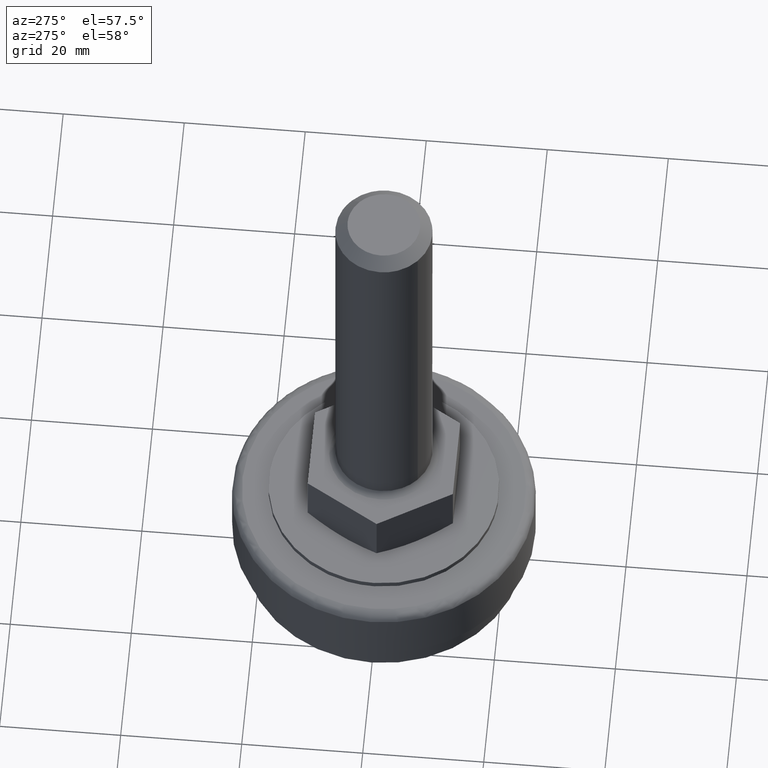
[diagram: clean part render]
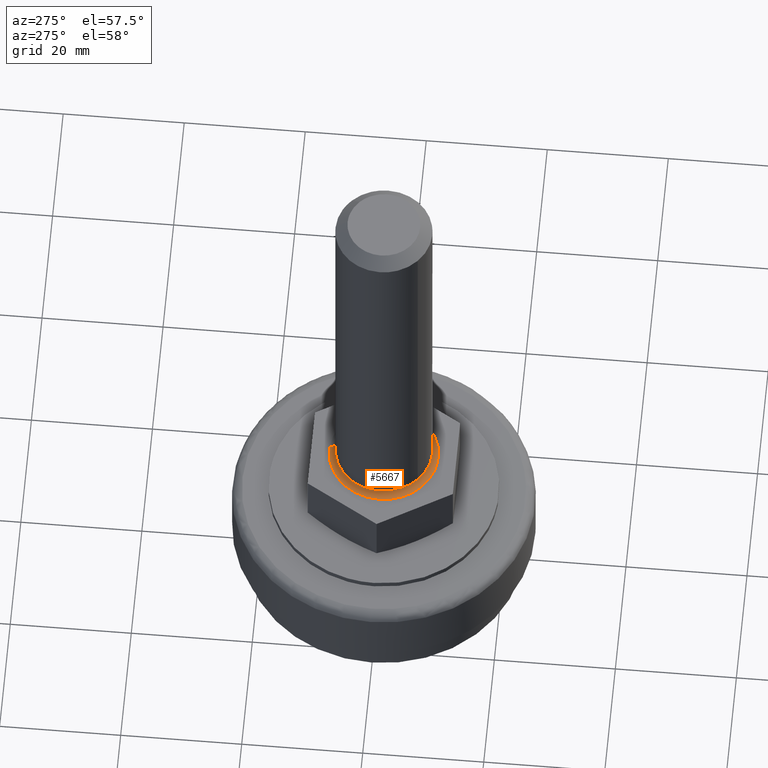
[diagram: same view with one face highlighted and labeled with its STEP entity id]
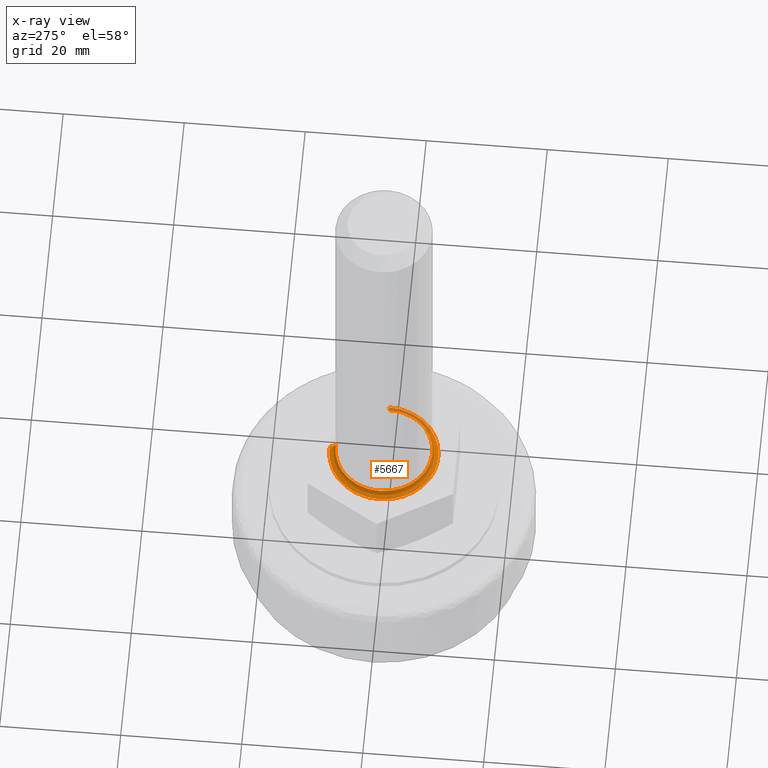
[diagram: x-ray of the same camera — body ghosted, the highlighted face saturated]
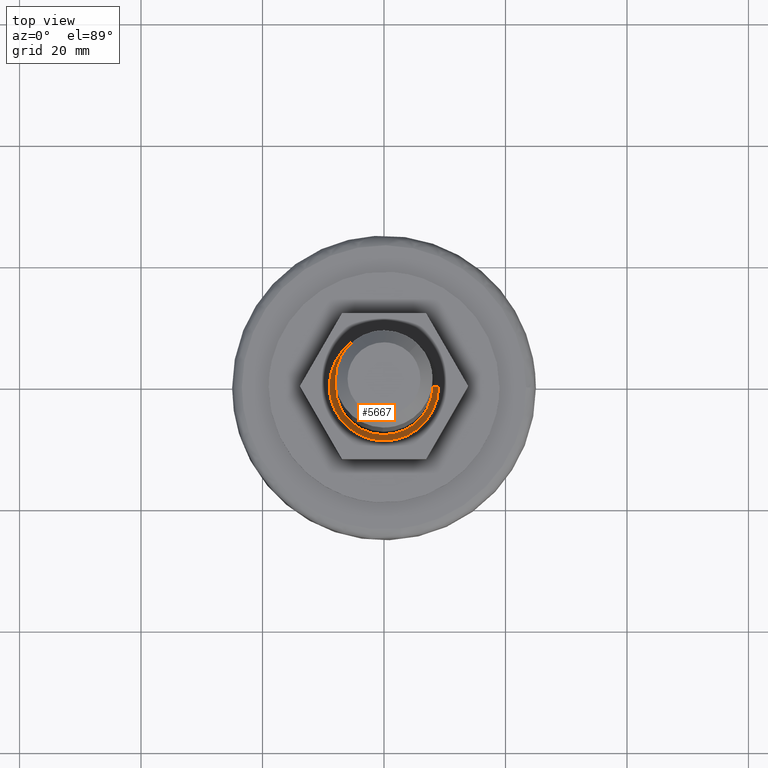
[diagram: same view with one face highlighted and labeled with its STEP entity id]
A machine part, auxiliary view. The second image highlights one B-rep face of the part: STEP entity #5667.
The next image is the same camera in x-ray: the body ghosted, the highlighted face saturated — about 10% of this face is hidden behind the body in this view.
A second angle (top view) of the same face is appended — the face is thin or edge-on in the first view.
In plain terms, the highlighted face is a freeform B-spline surface patch.
Its self-contained STEP definition (entity closure, byte-faithful):
#5288=CARTESIAN_POINT('',(-8.0,0.0,28.500000000000000));
#5289=VERTEX_POINT('',#5288);
#5290=CARTESIAN_POINT('',(-5.228297372842688,-6.055155372170212,28.500000000000011));
#5291=VERTEX_POINT('',#5290);
#5292=CARTESIAN_POINT('',(-8.0,0.0,28.500000000000000));
#5293=CARTESIAN_POINT('',(-8.0,-3.661940884154239,28.500000000000004));
#5294=CARTESIAN_POINT('',(-5.228297372842688,-6.055155372170212,28.500000000000011));
#5302=(BOUNDED_CURVE()B_SPLINE_CURVE(2,(#5292,#5293,#5294),.UNSPECIFIED.,.F.,.U.)B_SPLINE_CURVE_WITH_KNOTS((3,3),(0.500000000000000,0.636042381466519),.UNSPECIFIED.)CURVE()GEOMETRIC_REPRESENTATION_ITEM()RATIONAL_B_SPLINE_CURVE((1.0,0.840616435988895,0.854696228895326))REPRESENTATION_ITEM(''));
#5303=EDGE_CURVE('',#5289,#5291,#5302,.T.);
#5315=CARTESIAN_POINT('',(-0.209415586498194,-7.997258599803535,28.500000000000000));
#5316=VERTEX_POINT('',#5315);
#5322=CARTESIAN_POINT('',(7.999368353630505,-0.100528319068580,28.499999998374079));
#5323=VERTEX_POINT('',#5322);
#5324=CARTESIAN_POINT('',(-0.209415586498194,-7.997258599803535,28.500000000000004));
#5325=CARTESIAN_POINT('',(-0.104725736713907,-8.000000000000002,28.500000000000004));
#5326=CARTESIAN_POINT('',(0.0,-8.0,28.500000000000000));
#5327=CARTESIAN_POINT('',(7.900095439255026,-8.0,28.500000000000007));
#5328=CARTESIAN_POINT('',(7.999368353630505,-0.100528319068580,28.499999998374086));
#5336=(BOUNDED_CURVE()B_SPLINE_CURVE(2,(#5324,#5325,#5326,#5327,#5328),.UNSPECIFIED.,.F.,.U.)B_SPLINE_CURVE_WITH_KNOTS((3,2,3),(0.745396693339456,0.750000000000000,0.997784295921651),.UNSPECIFIED.)CURVE()GEOMETRIC_REPRESENTATION_ITEM()RATIONAL_B_SPLINE_CURVE((0.989412390644809,0.994606890780031,1.0,0.709702639984331,0.994854295643834))REPRESENTATION_ITEM(''));
#5337=EDGE_CURVE('',#5316,#5323,#5336,.T.);
#5354=CARTESIAN_POINT('',(0.557866012694641,7.980525390717089,28.499999998402100));
#5355=VERTEX_POINT('',#5354);
#5369=CARTESIAN_POINT('',(0.557866012694641,7.980525390717089,28.499999998402100));
#5370=CARTESIAN_POINT('',(0.279272927089130,8.0,28.499999999999996));
#5371=CARTESIAN_POINT('',(0.0,8.0,28.500000000000000));
#5372=CARTESIAN_POINT('',(-8.0,8.0,28.500000000000007));
#5373=CARTESIAN_POINT('',(-8.0,0.0,28.500000000000000));
#5381=(BOUNDED_CURVE()B_SPLINE_CURVE(2,(#5369,#5370,#5371,#5372,#5373),.UNSPECIFIED.,.F.,.U.)B_SPLINE_CURVE_WITH_KNOTS((3,2,3),(0.237833686531208,0.250000000000000,0.500000000000000),.UNSPECIFIED.)CURVE()GEOMETRIC_REPRESENTATION_ITEM()RATIONAL_B_SPLINE_CURVE((0.972879876378762,0.985746277148128,1.0,0.707106781186548,1.0))REPRESENTATION_ITEM(''));
#5382=EDGE_CURVE('',#5355,#5289,#5381,.T.);
#5405=CARTESIAN_POINT('',(-5.228297372842687,-6.055155372170212,28.500000000000018));
#5406=CARTESIAN_POINT('',(-3.065671857307104,-7.922464897089474,28.500000000000004));
#5407=CARTESIAN_POINT('',(-0.209415586498194,-7.997258599803535,28.499999999999996));
#5415=(BOUNDED_CURVE()B_SPLINE_CURVE(2,(#5405,#5406,#5407),.UNSPECIFIED.,.F.,.U.)B_SPLINE_CURVE_WITH_KNOTS((3,3),(0.636042381466519,0.745396693339456),.UNSPECIFIED.)CURVE()GEOMETRIC_REPRESENTATION_ITEM()RATIONAL_B_SPLINE_CURVE((0.854696228895326,0.866013923043273,0.989412390644810))REPRESENTATION_ITEM(''));
#5416=EDGE_CURVE('',#5291,#5316,#5415,.T.);
#5564=CARTESIAN_POINT('',(0.558034370785871,7.982940164000940,28.569537117542900));
#5565=CARTESIAN_POINT('',(0.329566273462526,7.998910852533643,28.569537117542893));
#5566=CARTESIAN_POINT('',(0.100558736863971,8.001788797602575,28.569537117542890));
#5567=CARTESIAN_POINT('',(-7.901230060738604,8.102347534466544,28.569537117542893));
#5568=CARTESIAN_POINT('',(-8.001788797602575,0.100558736863972,28.569537117542890));
#5569=CARTESIAN_POINT('',(-8.102347534466546,-7.901230060738604,28.569537117542893));
#5570=CARTESIAN_POINT('',(-0.100558736863972,-8.001788797602575,28.569537117542890));
#5571=CARTESIAN_POINT('',(7.901230060738602,-8.102347534466546,28.569537117542893));
#5572=CARTESIAN_POINT('',(8.001788797602575,-0.100558736863973,28.569537117542890));
#5573=CARTESIAN_POINT('',(0.552458657605693,7.903177004204340,27.422462619565575));
#5574=CARTESIAN_POINT('',(0.326273345444312,7.918988118375302,27.422462619565589));
#5575=CARTESIAN_POINT('',(0.099553983924247,7.921837307874517,27.422462619565572));
#5576=CARTESIAN_POINT('',(-7.822283323950267,8.021391291798761,27.422462619565579));
#5577=CARTESIAN_POINT('',(-7.921837307874517,0.099553983924247,27.422462619565572));
#5578=CARTESIAN_POINT('',(-8.021391291798761,-7.822283323950267,27.422462619565579));
#5579=CARTESIAN_POINT('',(-0.099553983924248,-7.921837307874517,27.422462619565572));
#5580=CARTESIAN_POINT('',(7.822283323950267,-8.021391291798764,27.422462619565579));
#5581=CARTESIAN_POINT('',(7.921837307874517,-0.099553983924248,27.422462619565572));
#5582=CARTESIAN_POINT('',(0.632447827896207,9.047459137396228,27.502420648819527));
#5583=CARTESIAN_POINT('',(0.373513684301718,9.065559505046146,27.502420648819530));
#5584=CARTESIAN_POINT('',(0.113968167616702,9.068821221891806,27.502420648819530));
#5585=CARTESIAN_POINT('',(-8.954853054275105,9.182789389508510,27.502420648819527));
#5586=CARTESIAN_POINT('',(-9.068821221891806,0.113968167616702,27.502420648819530));
#5587=CARTESIAN_POINT('',(-9.182789389508510,-8.954853054275105,27.502420648819527));
#5588=CARTESIAN_POINT('',(-0.113968167616703,-9.068821221891806,27.502420648819530));
#5589=CARTESIAN_POINT('',(8.954853054275105,-9.182789389508512,27.502420648819527));
#5590=CARTESIAN_POINT('',(9.068821221891806,-0.113968167616703,27.502420648819530));
#5598=(BOUNDED_SURFACE()B_SPLINE_SURFACE(2,2,((#5564,#5573,#5582),(#5565,#5574,#5583),(#5566,#5575,#5584),(#5567,#5576,#5585),(#5568,#5577,#5586),(#5569,#5578,#5587),(#5570,#5579,#5588),(#5571,#5580,#5589),(#5572,#5581,#5590)),.UNSPECIFIED.,.F.,.F.,.U.)B_SPLINE_SURFACE_WITH_KNOTS((3,2,2,2,3),(3,3),(0.0,0.601075484383022,15.627976924728539,30.654878365074062,45.681779805419573),(0.0,1.822374170355891),.UNSPECIFIED.)GEOMETRIC_REPRESENTATION_ITEM()RATIONAL_B_SPLINE_SURFACE(((0.889999303352454,0.584039722868744,0.889999383380160),(0.899812874413934,0.590479632766999,0.899812955324064),(0.910479798596171,0.597479534249830,0.910479880465459),(0.643806439720715,0.422481830288235,0.643806497611043),(0.910479798596171,0.597479534249830,0.910479880465459),(0.643806439720715,0.422481830288235,0.643806497611043),(0.910479798596171,0.597479534249830,0.910479880465459),(0.643806439720715,0.422481830288235,0.643806497611043),(0.910479798596171,0.597479534249830,0.910479880465459)))REPRESENTATION_ITEM('')SURFACE());
#5599=CARTESIAN_POINT('',(-9.0,0.0,27.500000000000000));
#5600=VERTEX_POINT('',#5599);
#5601=CARTESIAN_POINT('',(0.627599264215905,8.978091064476018,27.500000000000000));
#5602=VERTEX_POINT('',#5601);
#5603=CARTESIAN_POINT('',(-9.0,0.0,27.500000000000000));
#5604=CARTESIAN_POINT('',(-9.0,9.0,27.499999999999993));
#5605=CARTESIAN_POINT('',(0.0,9.0,27.500000000000000));
#5606=CARTESIAN_POINT('',(0.314182042915423,8.999999999999998,27.500000000000004));
#5607=CARTESIAN_POINT('',(0.627599264215905,8.978091064476018,27.499999999999996));
#5615=(BOUNDED_CURVE()B_SPLINE_CURVE(2,(#5603,#5604,#5605,#5606,#5607),.UNSPECIFIED.,.F.,.U.)B_SPLINE_CURVE_WITH_KNOTS((3,2,3),(0.500000000000000,0.750000000000000,0.762166313466508),.UNSPECIFIED.)CURVE()GEOMETRIC_REPRESENTATION_ITEM()RATIONAL_B_SPLINE_CURVE((1.0,0.707106781186547,1.0,0.985746277150805,0.972879876383594))REPRESENTATION_ITEM(''));
#5616=EDGE_CURVE('',#5600,#5602,#5615,.T.);
#5617=ORIENTED_EDGE('',*,*,#5616,.F.);
#5618=CARTESIAN_POINT('',(8.999289397697183,-0.113094358939853,27.500000000000000));
#5619=VERTEX_POINT('',#5618);
#5620=CARTESIAN_POINT('',(8.999289397697183,-0.113094358939853,27.499999999999996));
#5621=CARTESIAN_POINT('',(8.887607369182808,-9.000000000000002,27.500000000000007));
#5622=CARTESIAN_POINT('',(0.0,-9.0,27.500000000000000));
#5623=CARTESIAN_POINT('',(-9.0,-9.0,27.499999999999993));
#5624=CARTESIAN_POINT('',(-9.0,0.0,27.500000000000000));
#5632=(BOUNDED_CURVE()B_SPLINE_CURVE(2,(#5620,#5621,#5622,#5623,#5624),.UNSPECIFIED.,.F.,.U.)B_SPLINE_CURVE_WITH_KNOTS((3,2,3),(0.002215704077936,0.250000000000000,0.500000000000000),.UNSPECIFIED.)CURVE()GEOMETRIC_REPRESENTATION_ITEM()RATIONAL_B_SPLINE_CURVE((0.994854295644786,0.709702639983846,1.0,0.707106781186547,1.0))REPRESENTATION_ITEM(''));
#5633=EDGE_CURVE('',#5619,#5600,#5632,.T.);
#5634=ORIENTED_EDGE('',*,*,#5633,.F.);
#5635=CARTESIAN_POINT('',(7.999368353630505,-0.100528319068580,28.499999998374086));
#5636=CARTESIAN_POINT('',(7.999368356882104,-0.100528319107684,27.500000000274564));
#5637=CARTESIAN_POINT('',(8.999289397697183,-0.113094358939853,27.500000000000000));
#5645=(BOUNDED_CURVE()B_SPLINE_CURVE(2,(#5635,#5636,#5637),.UNSPECIFIED.,.F.,.U.)B_SPLINE_CURVE_WITH_KNOTS((3,3),(-1.725134639947075,-0.274865356999740),.UNSPECIFIED.)CURVE()GEOMETRIC_REPRESENTATION_ITEM()RATIONAL_B_SPLINE_CURVE((0.883342148463239,0.624617224772719,0.883342149552602))REPRESENTATION_ITEM(''));
#5646=EDGE_CURVE('',#5323,#5619,#5645,.T.);
#5647=ORIENTED_EDGE('',*,*,#5646,.F.);
#5648=ORIENTED_EDGE('',*,*,#5337,.F.);
#5649=ORIENTED_EDGE('',*,*,#5416,.F.);
#5650=ORIENTED_EDGE('',*,*,#5303,.F.);
#5651=ORIENTED_EDGE('',*,*,#5382,.F.);
#5652=CARTESIAN_POINT('',(0.557866012694641,7.980525390717089,28.499999998402110));
#5653=CARTESIAN_POINT('',(0.557866012826390,7.980525393911467,27.500000000170175));
#5654=CARTESIAN_POINT('',(0.627599264215905,8.978091064476018,27.500000000000000));
#5662=(BOUNDED_CURVE()B_SPLINE_CURVE(2,(#5652,#5653,#5654),.UNSPECIFIED.,.F.,.U.)B_SPLINE_CURVE_WITH_KNOTS((3,3),(-1.725134640004546,-0.274865356892692),.UNSPECIFIED.)CURVE()GEOMETRIC_REPRESENTATION_ITEM()RATIONAL_B_SPLINE_CURVE((0.863472074229690,0.610566960463197,0.863472075311840))REPRESENTATION_ITEM(''));
#5663=EDGE_CURVE('',#5355,#5602,#5662,.T.);
#5664=ORIENTED_EDGE('',*,*,#5663,.T.);
#5665=EDGE_LOOP('',(#5617,#5634,#5647,#5648,#5649,#5650,#5651,#5664));
#5666=FACE_OUTER_BOUND('',#5665,.T.);
#5667=ADVANCED_FACE('',(#5666),#5598,.F.);